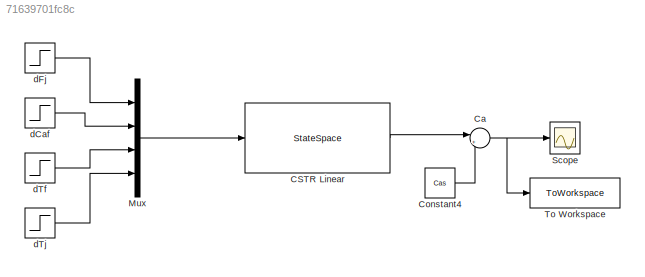
MODEL slx_71639701fc8c
KIND model
CONFIG AbsTol = auto
CONFIG EnableMultiTasking = off
CONFIG FixedStep = 0.01
CONFIG MaxStep = auto
CONFIG MinStep = auto
CONFIG RelTol = 1e-3
CONFIG SampleTimeConstraint = Unconstrained
CONFIG SolverName = FixedStepAuto
CONFIG StartTime = 0.0
CONFIG StopTime = 15
BLOCK [Sum]               Ca
  Inputs = |++
  NameLocation = top
  Ports = [2, 1]
BLOCK [StateSpace] CSTR Linear
  A = A
  B = B
  C = C
  D = D
  InitialCondition = 0
  Ports = [1, 1]
BLOCK [Constant] Constant4
  Value = Cas
BLOCK [Mux] Mux
  DisplayOption = bar
  Ports = [4, 1]
BLOCK [Scope] Scope
  Floating = off
  NumInputPorts = 1
  Ports = [1]
  ScopeSpecificationString = Simulink.scopes.TimeScopeBlockCfg('CurrentConfiguration', extmgr.ConfigurationSet(extmgr.Configuration('Core','General UI',true),extmgr.Configuration('Core','Source UI',true),extmgr.Configuration('Sources','WiredSimulink',true),extmgr.Configuration('Visuals','Time Domain',true,'SerializedDisplays',{struct('MinYLimReal','8.5599','MaxYLimReal','8.60093','YLabelReal','','MinYLimMag','8.5599','MaxYLim...<+1330ch>
BLOCK [ToWorkspace] To Workspace
  FixptAsFi = on
  MaxDataPoints = inf
  Ports = [1]
  SampleTime = -1
  SaveFormat = Timeseries
  VariableName = CaLinear
BLOCK [Step] dCaf
  After = 0
  SampleTime = 0
  Time = 0
BLOCK [Step] dFj
  After = 0.01
  SampleTime = 0
  Time = 0
BLOCK [Step] dTf
  After = 0
  SampleTime = 0
  Time = 0
BLOCK [Step] dTj
  After = 0
  SampleTime = 0
  Time = 0
NET               Ca:1 -> Scope:1, To Workspace:1
LINE CSTR Linear:1 ->               Ca:1
LINE Constant4:1 ->               Ca:2
LINE Mux:1 -> CSTR Linear:1
LINE dCaf:1 -> Mux:2
LINE dFj:1 -> Mux:1
LINE dTf:1 -> Mux:3
LINE dTj:1 -> Mux:4
note: NET lines group one-source signal fan-out (src -> all destinations, sorted); 1:1 wires keep LINE
